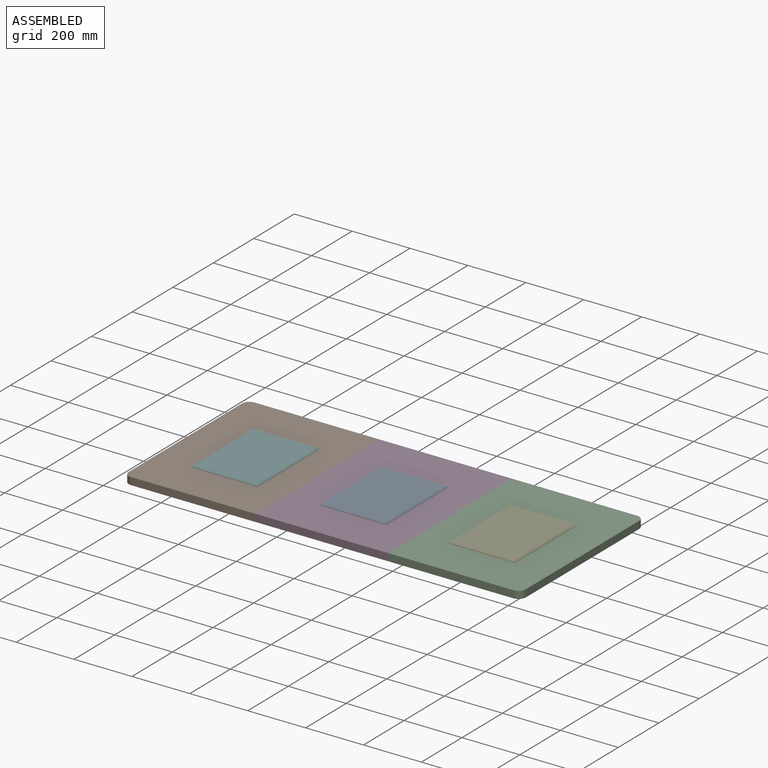
[diagram: assembled view]
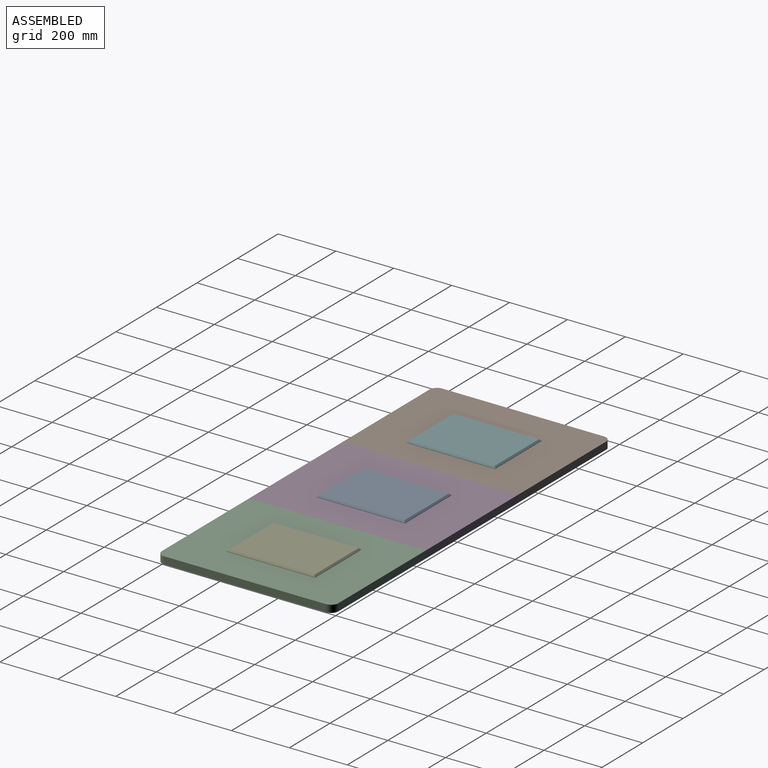
[diagram: assembled view, second angle]
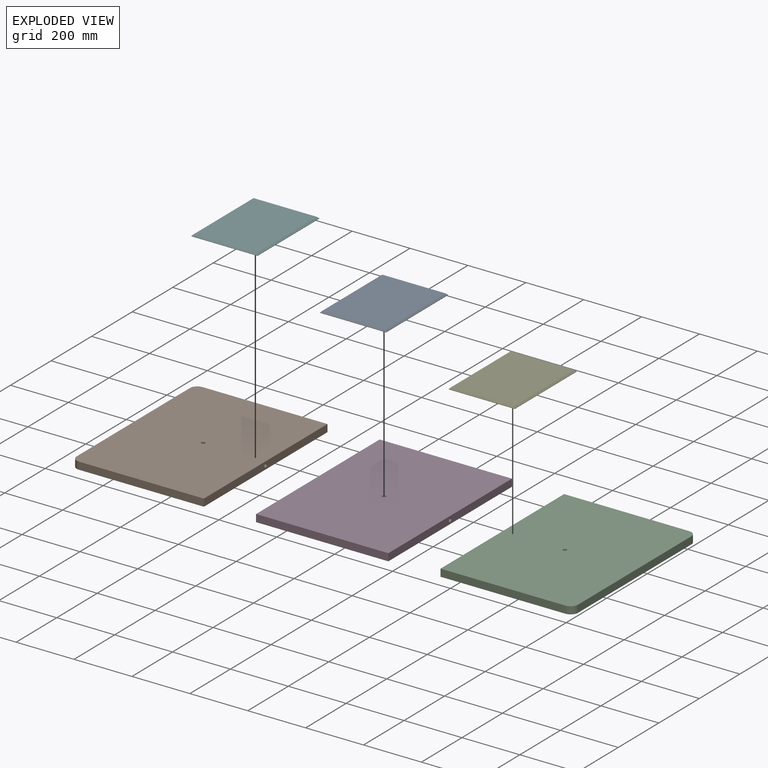
[diagram: exploded view]
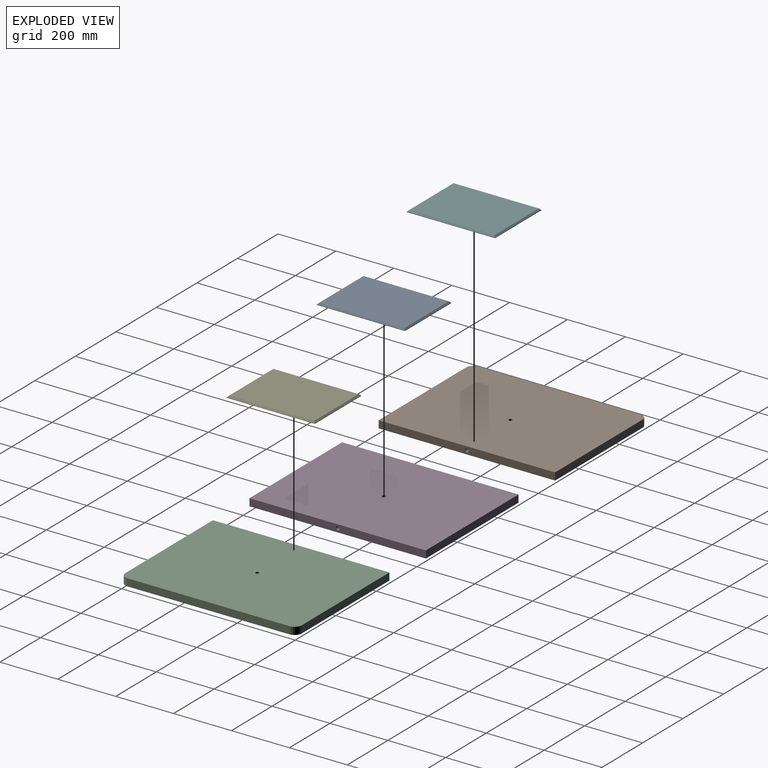
[diagram: exploded view, second angle]
ASSEMBLY  parts=6 mates=5
PART A: 12 faces, bbox 228.6x304.8x6.4 mm
  f0: plane 228.6x1.27mm, normal (0,-1,0), area 290.3mm2, adj f1,f3,f5,f11
  f1: plane 304.8x1.27mm, normal (1,0,0), area 387.1mm2, adj f0,f2,f5,f9
  f2: plane 228.6x1.27mm, normal (0,1,0), area 290.3mm2, adj f1,f3,f5,f8
  f3: plane 304.8x1.27mm, normal (-1,0,0), area 387.1mm2, adj f0,f2,f5,f10
  f4: plane 294.64x218.44mm, normal (0,0,1), area 64361.2mm2, adj f8,f9,f10,f11
  f5: plane 304.8x228.6mm, normal (0,0,-1), area 69550.6mm2, adj f0,f1,f2,f3,f6
  f6: cylinder r=6.35mm len=12.7mm, axis (0,0,-1), area 126.7mm2, adj f5,f7
  f7: plane 12.7x12.7mm, normal (0,0,-1), area 126.7mm2, adj f6
  f8: plane 228.6x5.08mm, normal (0,0.71,0.71), area 1605.8mm2, adj f2,f4,f9,f10
  f9: plane 304.8x5.08mm, normal (0.71,0,0.71), area 2153.2mm2, adj f1,f4,f8,f11
  f10: plane 304.8x5.08mm, normal (-0.71,0,0.71), area 2153.2mm2, adj f3,f4,f8,f11
  f11: plane 228.6x5.08mm, normal (0,-0.71,0.71), area 1605.8mm2, adj f0,f4,f9,f10
PART B: 12 faces, bbox 457.2x609.6x25.4 mm
  f0: plane 558.8x25.4mm, normal (-1,0,0), area 14193.5mm2, adj f1,f5,f6,f7
  f1: cylinder r=25.4mm len=25.4mm, axis (0,0,-1), area 1013.4mm2, adj f0,f2,f6,f7
  f2: plane 431.8x25.4mm, normal (0,-1,0), area 10967.7mm2, adj f1,f3,f6,f7
  f3: plane 609.6x25.4mm, normal (1,0,0), area 15357.2mm2, adj f2,f4,f6,f7,f8
  f4: plane 431.8x25.4mm, normal (0,1,0), area 10967.7mm2, adj f3,f5,f6,f7
  f5: cylinder r=25.4mm len=25.4mm, axis (0,0,-1), area 1013.4mm2, adj f0,f4,f6,f7
  f6: plane 609.6x457.2mm, normal (0,0,1), area 278305.5mm2, adj f0,f1,f2,f3,f4,f5,f10
  f7: plane 609.6x457.2mm, normal (0,0,-1), area 278432.2mm2, adj f0,f1,f2,f3,f4,f5
  f8: cylinder r=6.35mm len=25.4mm, axis (1,0,0), area 1013.4mm2, adj f3,f9
  f9: plane 12.7x12.7mm, normal (1,0,0), area 126.7mm2, adj f8
  f10: cylinder r=6.35mm len=12.7mm, axis (0,0,1), area 253.4mm2, adj f6,f11
  f11: plane 12.7x12.7mm, normal (0,0,1), area 126.7mm2, adj f10
PART C: same geometry as B
PART D: 10 faces, bbox 457.2x609.6x25.4 mm
  f0: cylinder r=6.35mm len=228.6mm, axis (1,0,0), area 8959.4mm2, adj f2,f8,f9
  f1: plane 457.2x25.4mm, normal (0,-1,0), area 11612.9mm2, adj f2,f4,f5,f6
  f2: plane 609.6x25.4mm, normal (1,0,0), area 15357.2mm2, adj f0,f1,f3,f5,f6
  f3: plane 457.2x25.4mm, normal (0,1,0), area 11612.9mm2, adj f2,f4,f5,f6
  f4: plane 609.6x25.4mm, normal (-1,0,0), area 15357.2mm2, adj f1,f3,f5,f6,f7
  f5: plane 609.6x457.2mm, normal (0,0,1), area 278582.4mm2, adj f1,f2,f3,f4,f8
  f6: plane 609.6x457.2mm, normal (0,0,-1), area 278582.4mm2, adj f1,f2,f3,f4,f9
  f7: cylinder r=6.35mm len=228.6mm, axis (1,0,0), area 8959.4mm2, adj f4,f8,f9
  f8: cylinder r=6.35mm len=12.7mm, axis (0,0,1), area 345.4mm2, adj f0,f5,f7
  f9: cylinder r=6.35mm len=12.7mm, axis (0,0,1), area 345.4mm2, adj f0,f6,f7
PART E: same geometry as A
PART F: same geometry as A
PLACE A rot(axis=(0.05,-0.34,0.94),0deg) t=(151.58,112.76,54.25)mm
PLACE B rot(axis=(0.05,-0.49,0.87),0deg) t=(-332.19,113.47,28.85)mm
PLACE C rot(axis=(0,0,-1),180deg) t=(635.35,112.06,28.85)mm
PLACE D rot(axis=(0.05,-0.34,0.94),0deg) t=(151.58,112.76,28.85)mm fixed
PLACE E t=(596.08,112.76,54.25)mm
PLACE F rot(axis=(0.05,-0.49,0.87),0deg) t=(-292.92,112.76,54.25)mm
MATE fastened B.f10 <-> F.f6  axis (0,0,1) through (-292.92,112.76,54.25)mm
MATE fastened D.f0 <-> B.f8  axis (1,0,0) through (-77.02,112.76,41.55)mm
MATE fastened C.f10 <-> E.f6  axis (0,0,1) through (596.08,112.76,54.25)mm
MATE fastened C.f8 <-> D.f0  axis (-1,0,0) through (380.18,112.76,41.55)mm
MATE fastened D.f8 <-> A.f6  axis (0,0,1) through (151.58,112.76,54.25)mm
